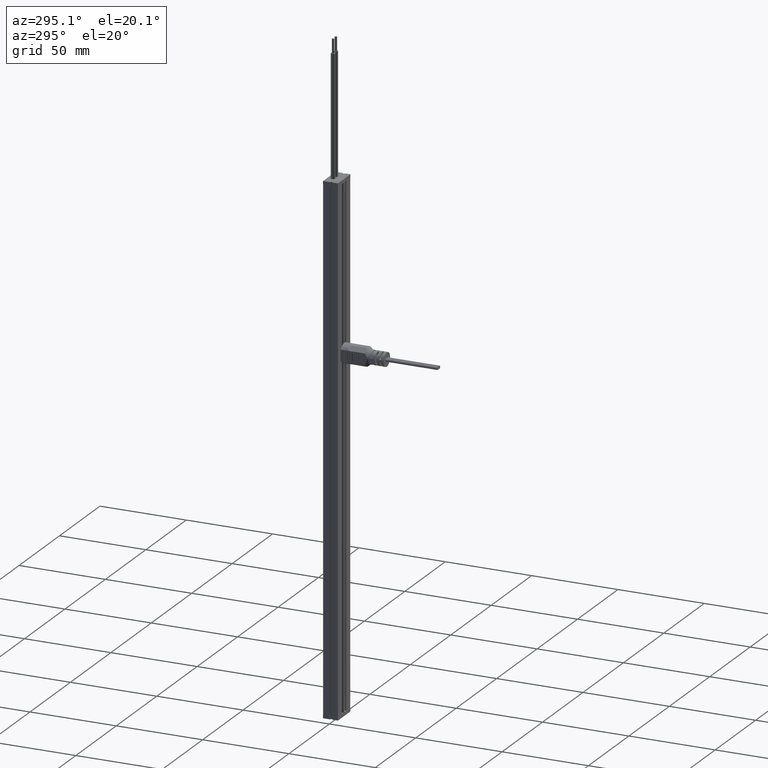
[diagram: clean part render]
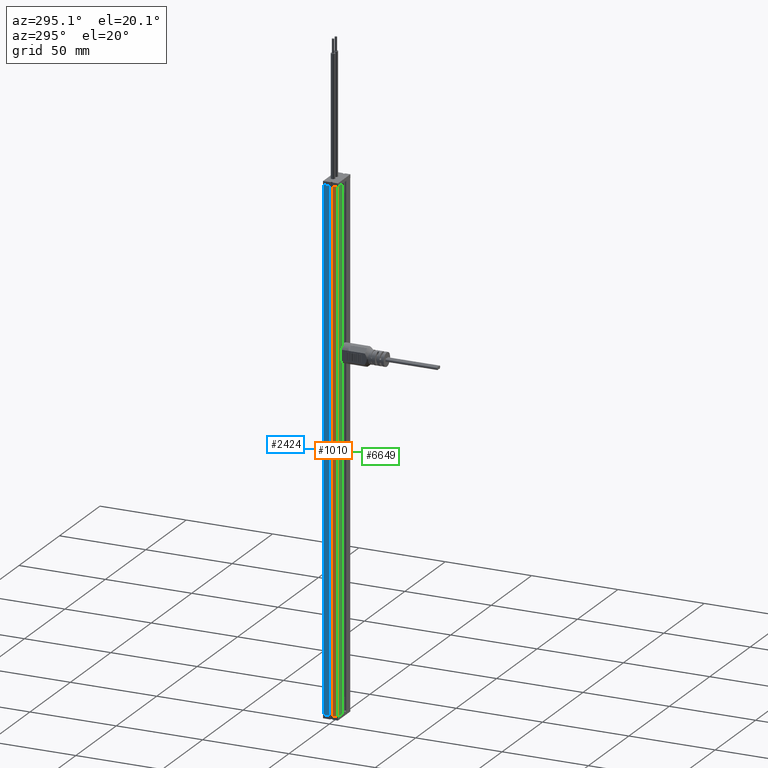
[diagram: same view with three faces highlighted in distinct colors, each labeled with its STEP entity id]
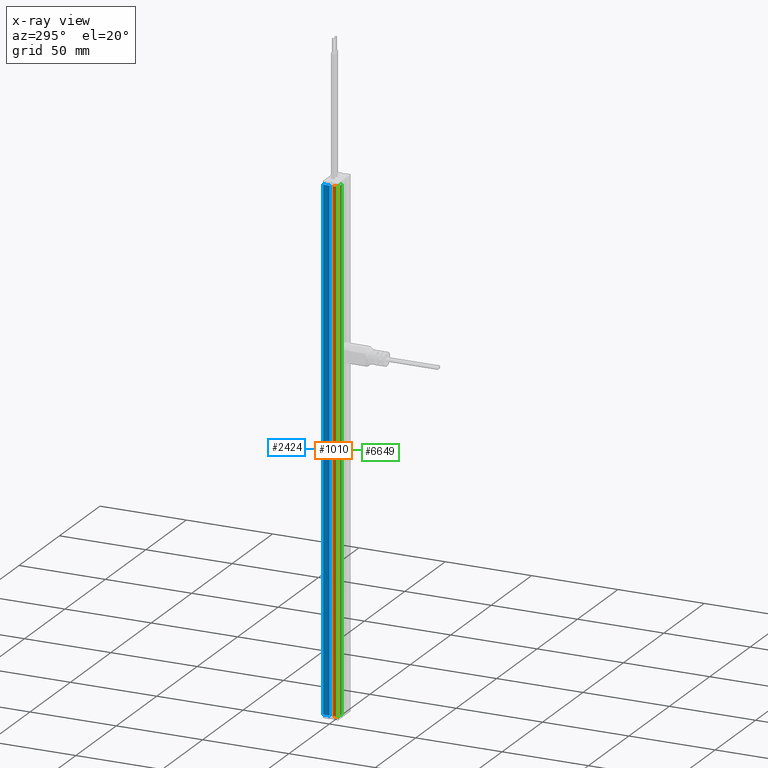
[diagram: x-ray of the same camera — body ghosted, the three highlighted faces saturated]
A machine part, auxiliary view with three faces highlighted in distinct colors.
The next image is the same camera in x-ray (body ghosted, the three faces saturated) — at least one of them is partly hidden behind the body in this view.
Their STEP definitions:

[orange] entity #1010 — the highlighted planar face has unit normal (1, 0, 0).
#327 = AXIS2_PLACEMENT_3D ( 'NONE', #1215, #10801, #14419 ) ;
#725 = ORIENTED_EDGE ( 'NONE', *, *, #10360, .F. ) ;
#1010 = ADVANCED_FACE ( 'NONE', ( #8474 ), #13057, .F. ) ;
#1215 = CARTESIAN_POINT ( 'NONE',  ( 7.700000000000001954, 8.500000000000000000, 148.0000000000000000 ) ) ;
#1216 = DIRECTION ( 'NONE',  ( -0.000000000000000000, -0.000000000000000000, -1.000000000000000000 ) ) ;
#1471 = EDGE_CURVE ( 'NONE', #15276, #7960, #8278, .T. ) ;
#1483 = LINE ( 'NONE', #12365, #14551 ) ;
#2347 = EDGE_CURVE ( 'NONE', #7960, #6384, #7866, .T. ) ;
#2806 = DIRECTION ( 'NONE',  ( -0.000000000000000000, 1.000000000000000000, -0.000000000000000000 ) ) ;
#3557 = CARTESIAN_POINT ( 'NONE',  ( 7.700000000000001954, 8.500000000000000000, -148.0000000000000000 ) ) ;
#5149 = DIRECTION ( 'NONE',  ( -0.000000000000000000, -0.000000000000000000, -1.000000000000000000 ) ) ;
#5649 = DIRECTION ( 'NONE',  ( -0.000000000000000000, 1.000000000000000000, -0.000000000000000000 ) ) ;
#5815 = VECTOR ( 'NONE', #5649, 1000.000000000000000 ) ;
#5924 = ORIENTED_EDGE ( 'NONE', *, *, #8436, .F. ) ;
#6095 = EDGE_LOOP ( 'NONE', ( #7027, #725, #5924, #10898 ) ) ;
#6384 = VERTEX_POINT ( 'NONE', #3557 ) ;
#7027 = ORIENTED_EDGE ( 'NONE', *, *, #2347, .T. ) ;
#7525 = CARTESIAN_POINT ( 'NONE',  ( 7.700000000000001954, 5.599999999999999645, -148.0000000000000000 ) ) ;
#7866 = LINE ( 'NONE', #11354, #5815 ) ;
#7960 = VERTEX_POINT ( 'NONE', #7525 ) ;
#8278 = LINE ( 'NONE', #13500, #12373 ) ;
#8377 = VECTOR ( 'NONE', #1216, 1000.000000000000000 ) ;
#8436 = EDGE_CURVE ( 'NONE', #15276, #9813, #1483, .T. ) ;
#8474 = FACE_OUTER_BOUND ( 'NONE', #6095, .T. ) ;
#9813 = VERTEX_POINT ( 'NONE', #11903 ) ;
#10360 = EDGE_CURVE ( 'NONE', #9813, #6384, #12475, .T. ) ;
#10801 = DIRECTION ( 'NONE',  ( -1.000000000000000000, 0.000000000000000000, 0.000000000000000000 ) ) ;
#10898 = ORIENTED_EDGE ( 'NONE', *, *, #1471, .T. ) ;
#11354 = CARTESIAN_POINT ( 'NONE',  ( 7.700000000000001954, 8.500000000000000000, -148.0000000000000000 ) ) ;
#11681 = CARTESIAN_POINT ( 'NONE',  ( 7.700000000000001954, 5.599999999999999645, 148.0000000000000000 ) ) ;
#11903 = CARTESIAN_POINT ( 'NONE',  ( 7.700000000000001954, 8.500000000000000000, 148.0000000000000000 ) ) ;
#12365 = CARTESIAN_POINT ( 'NONE',  ( 7.700000000000001954, 8.500000000000000000, 148.0000000000000000 ) ) ;
#12373 = VECTOR ( 'NONE', #5149, 1000.000000000000000 ) ;
#12475 = LINE ( 'NONE', #12910, #8377 ) ;
#12910 = CARTESIAN_POINT ( 'NONE',  ( 7.700000000000001954, 8.500000000000000000, 148.0000000000000000 ) ) ;
#13057 = PLANE ( 'NONE',  #327 ) ;
#13500 = CARTESIAN_POINT ( 'NONE',  ( 7.700000000000001954, 5.599999999999999645, 148.0000000000000000 ) ) ;
#14419 = DIRECTION ( 'NONE',  ( 0.000000000000000000, 0.000000000000000000, 1.000000000000000000 ) ) ;
#14551 = VECTOR ( 'NONE', #2806, 1000.000000000000000 ) ;
#15276 = VERTEX_POINT ( 'NONE', #11681 ) ;

[blue] entity #2424 — the highlighted planar face has unit normal (1, 0, 0).
#423 = VECTOR ( 'NONE', #10682, 1000.000000000000000 ) ;
#2424 = ADVANCED_FACE ( 'NONE', ( #11974 ), #8857, .F. ) ;
#2707 = DIRECTION ( 'NONE',  ( -0.000000000000000000, -0.000000000000000000, -1.000000000000000000 ) ) ;
#2848 = CARTESIAN_POINT ( 'NONE',  ( 7.700000000000002842, 0.000000000000000000, 148.0000000000000000 ) ) ;
#2867 = CARTESIAN_POINT ( 'NONE',  ( 7.700000000000001954, 3.800000000000000266, -148.0000000000000000 ) ) ;
#2912 = DIRECTION ( 'NONE',  ( -0.000000000000000000, -0.000000000000000000, -1.000000000000000000 ) ) ;
#3465 = ORIENTED_EDGE ( 'NONE', *, *, #5980, .T. ) ;
#3766 = ORIENTED_EDGE ( 'NONE', *, *, #12502, .F. ) ;
#4190 = VERTEX_POINT ( 'NONE', #2867 ) ;
#4483 = ORIENTED_EDGE ( 'NONE', *, *, #6406, .F. ) ;
#4796 = VERTEX_POINT ( 'NONE', #2848 ) ;
#4858 = CARTESIAN_POINT ( 'NONE',  ( 7.700000000000001954, 3.800000000000000266, -148.0000000000000000 ) ) ;
#5569 = VERTEX_POINT ( 'NONE', #7924 ) ;
#5980 = EDGE_CURVE ( 'NONE', #5569, #4190, #14816, .T. ) ;
#6406 = EDGE_CURVE ( 'NONE', #4796, #11178, #11276, .T. ) ;
#6417 = CARTESIAN_POINT ( 'NONE',  ( 7.700000000000001954, 3.800000000000000266, 148.0000000000000000 ) ) ;
#6511 = LINE ( 'NONE', #10087, #12485 ) ;
#6585 = DIRECTION ( 'NONE',  ( -1.000000000000000000, -2.282530889443167022E-16, 0.000000000000000000 ) ) ;
#6755 = ORIENTED_EDGE ( 'NONE', *, *, #10201, .T. ) ;
#7255 = CARTESIAN_POINT ( 'NONE',  ( 7.700000000000001954, 3.800000000000000266, 148.0000000000000000 ) ) ;
#7294 = VECTOR ( 'NONE', #2707, 1000.000000000000000 ) ;
#7669 = CARTESIAN_POINT ( 'NONE',  ( 7.700000000000001954, 3.800000000000000266, 148.0000000000000000 ) ) ;
#7924 = CARTESIAN_POINT ( 'NONE',  ( 7.700000000000002842, 0.000000000000000000, -148.0000000000000000 ) ) ;
#8534 = EDGE_LOOP ( 'NONE', ( #3465, #3766, #4483, #6755 ) ) ;
#8857 = PLANE ( 'NONE',  #9844 ) ;
#9352 = CARTESIAN_POINT ( 'NONE',  ( 7.700000000000001954, 3.800000000000000266, 148.0000000000000000 ) ) ;
#9844 = AXIS2_PLACEMENT_3D ( 'NONE', #7669, #6585, #13806 ) ;
#9923 = LINE ( 'NONE', #6417, #7294 ) ;
#10087 = CARTESIAN_POINT ( 'NONE',  ( 7.700000000000002842, 0.000000000000000000, 148.0000000000000000 ) ) ;
#10201 = EDGE_CURVE ( 'NONE', #4796, #5569, #6511, .T. ) ;
#10682 = DIRECTION ( 'NONE',  ( -2.282530889443167022E-16, 1.000000000000000000, -0.000000000000000000 ) ) ;
#11178 = VERTEX_POINT ( 'NONE', #9352 ) ;
#11276 = LINE ( 'NONE', #7255, #423 ) ;
#11974 = FACE_OUTER_BOUND ( 'NONE', #8534, .T. ) ;
#12485 = VECTOR ( 'NONE', #2912, 1000.000000000000000 ) ;
#12502 = EDGE_CURVE ( 'NONE', #11178, #4190, #9923, .T. ) ;
#13216 = DIRECTION ( 'NONE',  ( -2.282530889443167022E-16, 1.000000000000000000, -0.000000000000000000 ) ) ;
#13806 = DIRECTION ( 'NONE',  ( 2.282530889443167022E-16, -1.000000000000000000, 0.000000000000000000 ) ) ;
#14816 = LINE ( 'NONE', #4858, #14983 ) ;
#14983 = VECTOR ( 'NONE', #13216, 1000.000000000000000 ) ;

[green] entity #6649 — the highlighted planar face has unit normal (-0, 1, 0).
#330 = EDGE_CURVE ( 'NONE', #6384, #1995, #8697, .T. ) ;
#958 = FACE_OUTER_BOUND ( 'NONE', #7552, .T. ) ;
#1216 = DIRECTION ( 'NONE',  ( -0.000000000000000000, -0.000000000000000000, -1.000000000000000000 ) ) ;
#1995 = VERTEX_POINT ( 'NONE', #7762 ) ;
#2358 = DIRECTION ( 'NONE',  ( -1.000000000000000000, 0.000000000000000000, 0.000000000000000000 ) ) ;
#3502 = VECTOR ( 'NONE', #2358, 1000.000000000000000 ) ;
#3557 = CARTESIAN_POINT ( 'NONE',  ( 7.700000000000001954, 8.500000000000000000, -148.0000000000000000 ) ) ;
#4537 = VECTOR ( 'NONE', #13804, 1000.000000000000000 ) ;
#4965 = ORIENTED_EDGE ( 'NONE', *, *, #12828, .F. ) ;
#5300 = CARTESIAN_POINT ( 'NONE',  ( 7.700000000000001954, 8.500000000000000000, -148.0000000000000000 ) ) ;
#5589 = VECTOR ( 'NONE', #7272, 1000.000000000000000 ) ;
#5691 = AXIS2_PLACEMENT_3D ( 'NONE', #7363, #7517, #12322 ) ;
#6287 = VERTEX_POINT ( 'NONE', #11671 ) ;
#6384 = VERTEX_POINT ( 'NONE', #3557 ) ;
#6649 = ADVANCED_FACE ( 'NONE', ( #958 ), #9887, .F. ) ;
#7272 = DIRECTION ( 'NONE',  ( -0.000000000000000000, -0.000000000000000000, -1.000000000000000000 ) ) ;
#7363 = CARTESIAN_POINT ( 'NONE',  ( 7.700000000000001954, 8.500000000000000000, 148.0000000000000000 ) ) ;
#7517 = DIRECTION ( 'NONE',  ( 0.000000000000000000, -1.000000000000000000, 0.000000000000000000 ) ) ;
#7552 = EDGE_LOOP ( 'NONE', ( #13396, #4965, #15255, #10695 ) ) ;
#7762 = CARTESIAN_POINT ( 'NONE',  ( 2.699999999999999289, 8.500000000000000000, -148.0000000000000000 ) ) ;
#7807 = LINE ( 'NONE', #13082, #3502 ) ;
#8224 = LINE ( 'NONE', #13050, #5589 ) ;
#8377 = VECTOR ( 'NONE', #1216, 1000.000000000000000 ) ;
#8697 = LINE ( 'NONE', #5300, #4537 ) ;
#9813 = VERTEX_POINT ( 'NONE', #11903 ) ;
#9887 = PLANE ( 'NONE',  #5691 ) ;
#10360 = EDGE_CURVE ( 'NONE', #9813, #6384, #12475, .T. ) ;
#10695 = ORIENTED_EDGE ( 'NONE', *, *, #10360, .T. ) ;
#11671 = CARTESIAN_POINT ( 'NONE',  ( 2.699999999999999289, 8.500000000000000000, 148.0000000000000000 ) ) ;
#11903 = CARTESIAN_POINT ( 'NONE',  ( 7.700000000000001954, 8.500000000000000000, 148.0000000000000000 ) ) ;
#12322 = DIRECTION ( 'NONE',  ( 0.000000000000000000, -0.000000000000000000, -1.000000000000000000 ) ) ;
#12475 = LINE ( 'NONE', #12910, #8377 ) ;
#12828 = EDGE_CURVE ( 'NONE', #6287, #1995, #8224, .T. ) ;
#12910 = CARTESIAN_POINT ( 'NONE',  ( 7.700000000000001954, 8.500000000000000000, 148.0000000000000000 ) ) ;
#13050 = CARTESIAN_POINT ( 'NONE',  ( 2.699999999999999289, 8.500000000000000000, 148.0000000000000000 ) ) ;
#13082 = CARTESIAN_POINT ( 'NONE',  ( 7.700000000000001954, 8.500000000000000000, 148.0000000000000000 ) ) ;
#13396 = ORIENTED_EDGE ( 'NONE', *, *, #330, .T. ) ;
#13804 = DIRECTION ( 'NONE',  ( -1.000000000000000000, 0.000000000000000000, 0.000000000000000000 ) ) ;
#14270 = EDGE_CURVE ( 'NONE', #9813, #6287, #7807, .T. ) ;
#15255 = ORIENTED_EDGE ( 'NONE', *, *, #14270, .F. ) ;